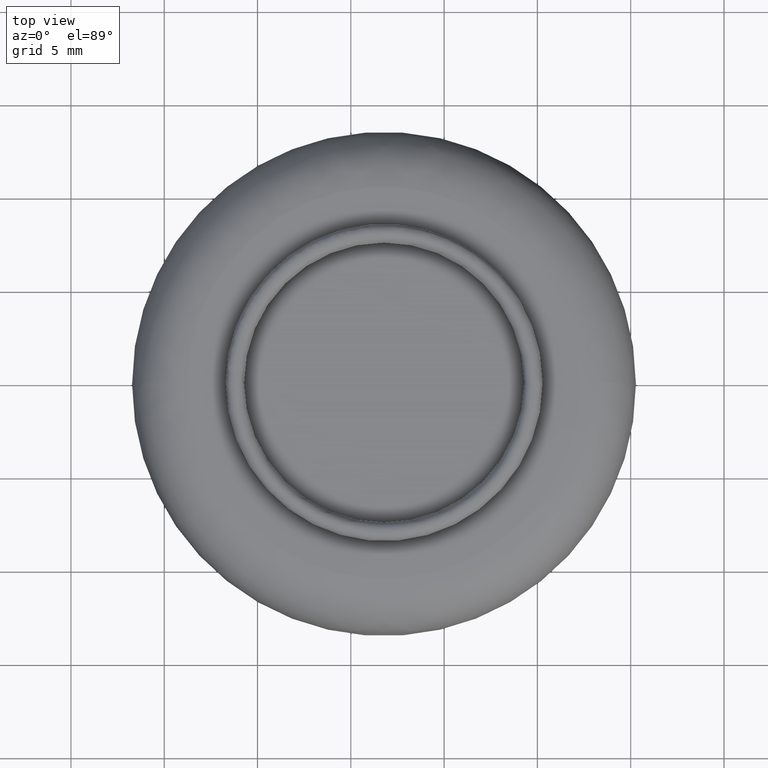
[diagram: clean part render]
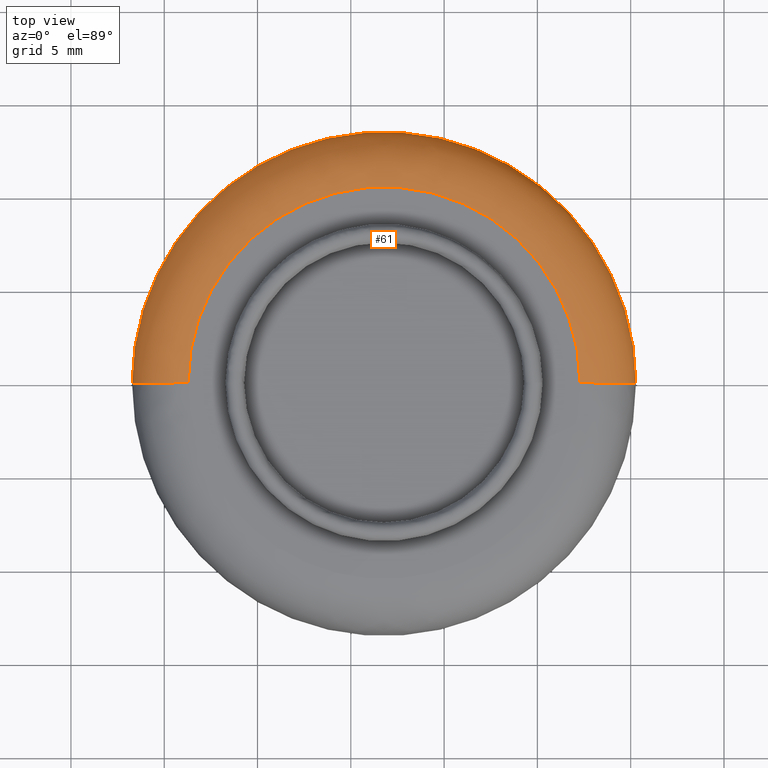
[diagram: same view with one face highlighted and labeled with its STEP entity id]
A machine part, top view. The second image highlights one B-rep face of the part: STEP entity #61.
In plain terms, the highlighted face is a freeform B-spline surface patch.
Its self-contained STEP definition (entity closure, byte-faithful):
#61=ADVANCED_FACE('',(#279),#278,.T.);
#278=( BOUNDED_SURFACE() B_SPLINE_SURFACE( 2,2,((#480,#481,#482,#483,#484),(#485,#486,#487,#488,#489),(#490,#491,#492,#493,#494),(#495,#496,#497,#498,#499),(#500,#501,#502,#503,#504)), .UNSPECIFIED.,.F.,.F.,.F.) B_SPLINE_SURFACE_WITH_KNOTS((3,2,3),(3,2,3),(0.00000000000E+000,5.00000000000E-001,1.00000000000E+000),(0.00000000000E+000,5.00000000000E-001,1.00000000000E+000), .UNSPECIFIED. ) GEOMETRIC_REPRESENTATION_ITEM() RATIONAL_B_SPLINE_SURFACE(((1.00000000000E+000,7.07106781186E-001,1.00000000000E+000,7.07106781186E-001,1.00000000000E+000),(7.07106781187E-001,5.00000000000E-001,7.07106781187E-001,5.00000000000E-001,7.07106781187E-001),(1.00000000000E+000,7.07106781186E-001,1.00000000000E+000,7.07106781186E-001,1.00000000000E+000),(7.07106781187E-001,5.00000000000E-001,7.07106781187E-001,5.00000000000E-001,7.07106781187E-001),(1.00000000000E+000,7.07106781186E-001,1.00000000000E+000,7.07106781186E-001,1.00000000000E+000))) REPRESENTATION_ITEM('') SURFACE() );
#279=FACE_OUTER_BOUND('',#505,.T.);
#480=CARTESIAN_POINT('',(2.69278069758E+002,5.41023840237E-014,2.68737988893E+002));
#481=CARTESIAN_POINT('',(2.69278069758E+002,-4.66356510372E-014,2.71737988893E+002));
#482=CARTESIAN_POINT('',(2.66278069758E+002,-3.60642889547E-014,2.71737988893E+002));
#483=CARTESIAN_POINT('',(2.63278069758E+002,-2.54929268722E-014,2.71737988893E+002));
#484=CARTESIAN_POINT('',(2.63278069758E+002,7.52451081888E-014,2.68737988893E+002));
#485=CARTESIAN_POINT('',(2.69278069758E+002,7.50000000000E+000,2.68737988893E+002));
#486=CARTESIAN_POINT('',(2.69278069758E+002,7.50000000000E+000,2.71737988893E+002));
#487=CARTESIAN_POINT('',(2.66278069758E+002,1.05000000000E+001,2.71737988893E+002));
#488=CARTESIAN_POINT('',(2.63278069758E+002,1.35000000000E+001,2.71737988893E+002));
#489=CARTESIAN_POINT('',(2.63278069758E+002,1.35000000000E+001,2.68737988893E+002));
#490=CARTESIAN_POINT('',(2.76778069758E+002,7.50000000000E+000,2.68737988893E+002));
#491=CARTESIAN_POINT('',(2.76778069758E+002,7.50000000000E+000,2.71737988893E+002));
#492=CARTESIAN_POINT('',(2.76778069758E+002,1.05000000000E+001,2.71737988893E+002));
#493=CARTESIAN_POINT('',(2.76778069758E+002,1.35000000000E+001,2.71737988893E+002));
#494=CARTESIAN_POINT('',(2.76778069758E+002,1.35000000000E+001,2.68737988893E+002));
#495=CARTESIAN_POINT('',(2.84278069758E+002,7.50000000000E+000,2.68737988893E+002));
#496=CARTESIAN_POINT('',(2.84278069758E+002,7.50000000000E+000,2.71737988893E+002));
#497=CARTESIAN_POINT('',(2.87278069758E+002,1.05000000000E+001,2.71737988893E+002));
#498=CARTESIAN_POINT('',(2.90278069758E+002,1.35000000000E+001,2.71737988893E+002));
#499=CARTESIAN_POINT('',(2.90278069758E+002,1.35000000000E+001,2.68737988893E+002));
#500=CARTESIAN_POINT('',(2.84278069758E+002,2.16405871029E-015,2.68737988893E+002));
#501=CARTESIAN_POINT('',(2.84278069758E+002,-9.85739763506E-014,2.71737988893E+002));
#502=CARTESIAN_POINT('',(2.87278069758E+002,-1.08777944393E-013,2.71737988893E+002));
#503=CARTESIAN_POINT('',(2.90278069758E+002,-1.18981912436E-013,2.71737988893E+002));
#504=CARTESIAN_POINT('',(2.90278069758E+002,-1.82438773754E-014,2.68737988893E+002));
#505=EDGE_LOOP('',(#638,#639,#640,#641));
#638=ORIENTED_EDGE('',*,*,#655,.T.);
#639=ORIENTED_EDGE('',*,*,#692,.T.);
#640=ORIENTED_EDGE('',*,*,#677,.F.);
#641=ORIENTED_EDGE('',*,*,#693,.F.);
#655=EDGE_CURVE('',#725,#724,#732,.T.);
#677=EDGE_CURVE('',#874,#881,#882,.T.);
#692=EDGE_CURVE('',#724,#881,#976,.T.);
#693=EDGE_CURVE('',#725,#874,#982,.T.);
#724=VERTEX_POINT('',#1020);
#725=VERTEX_POINT('',#1021);
#732=CIRCLE('',#1029,1.05000000000E+001);
#874=VERTEX_POINT('',#1118);
#881=VERTEX_POINT('',#1121);
#882=CIRCLE('',#1125,1.35000000000E+001);
#976=(BOUNDED_CURVE() B_SPLINE_CURVE(2,(#1172,#1173,#1174),.UNSPECIFIED.,.F.,.F.) B_SPLINE_CURVE_WITH_KNOTS((3,3),(5.00000000000E-001,1.00000000000E+000),.UNSPECIFIED.) CURVE() GEOMETRIC_REPRESENTATION_ITEM() RATIONAL_B_SPLINE_CURVE((1.00000000000E+000,7.07106781186E-001,1.00000000000E+000)) REPRESENTATION_ITEM('') );
#982=(BOUNDED_CURVE() B_SPLINE_CURVE(3,(#1175,#1176,#1177,#1178,#1179),.UNSPECIFIED.,.F.,.F.) B_SPLINE_CURVE_WITH_KNOTS((4,1,4),(4.99999990712E-001,7.49999994651E-001,1.00000000000E+000),.UNSPECIFIED.) CURVE() GEOMETRIC_REPRESENTATION_ITEM() RATIONAL_B_SPLINE_CURVE((1.00000000000E+000,1.00000000000E+000,1.00000000000E+000,1.00000000000E+000,1.00000000000E+000)) REPRESENTATION_ITEM('') );
#1020=CARTESIAN_POINT('',(2.87278069758E+002,-1.15463194561E-013,2.71737988893E+002));
#1021=CARTESIAN_POINT('',(2.66278069758E+002,2.14367278991E-014,2.71737988893E+002));
#1026=CARTESIAN_POINT('',(2.76778069758E+002,0.00000000000E+000,2.71737988893E+002));
#1027=DIRECTION('',(0.00000000000E+000,0.00000000000E+000,-1.00000000000E+000));
#1028=DIRECTION('',(-1.00000000000E+000,1.71996455878E-015,0.00000000000E+000));
#1029=AXIS2_PLACEMENT_3D('',#1026,#1027,#1028);
#1118=CARTESIAN_POINT('',(2.63278069758E+002,-1.77635683940E-015,2.68737988893E+002));
#1121=CARTESIAN_POINT('',(2.90278069758E+002,-2.83228030872E-014,2.68737988893E+002));
#1122=CARTESIAN_POINT('',(2.76778069758E+002,0.00000000000E+000,2.68737988893E+002));
#1123=DIRECTION('',(0.00000000000E+000,0.00000000000E+000,-1.00000000000E+000));
#1124=DIRECTION('',(1.00000000000E+000,-1.77635683940E-015,-0.00000000000E+000));
#1125=AXIS2_PLACEMENT_3D('',#1122,#1123,#1124);
#1172=CARTESIAN_POINT('',(2.87278069758E+002,-1.11349702672E-013,2.71737988893E+002));
#1173=CARTESIAN_POINT('',(2.90278069758E+002,-1.22288458794E-013,2.71737988893E+002));
#1174=CARTESIAN_POINT('',(2.90278069758E+002,-2.15504237331E-014,2.68737988893E+002));
#1175=CARTESIAN_POINT('',(2.66278069837E+002,-3.37507802499E-014,2.71737988893E+002));
#1176=CARTESIAN_POINT('',(2.65499718507E+002,-3.08651218125E-014,2.71744661092E+002));
#1177=CARTESIAN_POINT('',(2.63927940844E+002,-2.71928638789E-015,2.71088117873E+002));
#1178=CARTESIAN_POINT('',(2.63271397580E+002,5.22590316075E-014,2.69516340227E+002));
#1179=CARTESIAN_POINT('',(2.63278069758E+002,7.81597009336E-014,2.68737988893E+002));